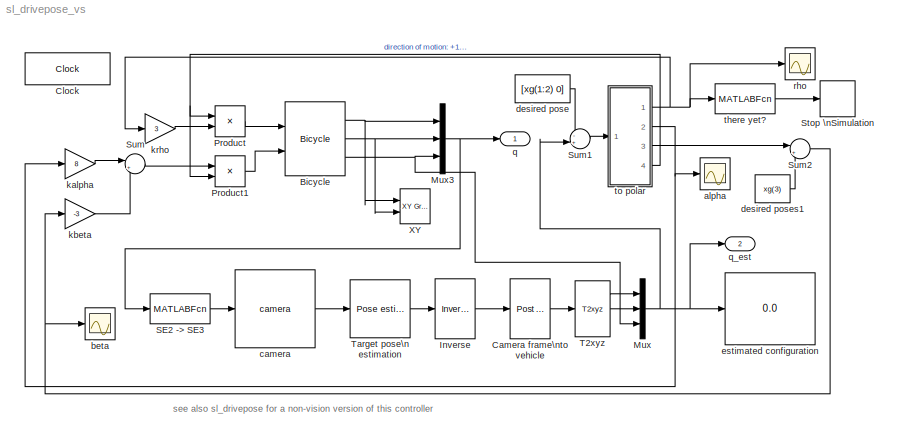
MODEL sl_drivepose_vs
KIND model
CONFIG InitFcn = camera = CentralCamera('default', 'focal', 0.002);\nP = [4 10 3; 9 9 2; 6 8 3; 8 10 4; 10 7 2]';\nT_VC = transl(0.2, 0.1, 0.5)*troty(pi/2)*trotz(-pi/2);\nx0 = [2 2 0];\nxg = [5 5 pi/2];
BLOCK [Reference] Bicycle  REF=roblocks/Dynamics/Bicycle  (lib defined in mdl_2a292b13c81b, mdl_69400f8cfe22, +12 more)
  L = 1
  Ports = [2, 3]
  SID = 41
  SourceBlock = roblocks/Dynamics/Bicycle
  accel = 1
  alim = 1
  handbrake = 0
  vlim = 1
  x0 = x0
BLOCK [Reference] Camera frame\nto vehicle  REF=roblocks/Transform/Post multiply  (lib defined in mdl_2a292b13c81b, mdl_69400f8cfe22, +12 more)
  Ports = [1, 1]
  SID = 126
  SourceBlock = roblocks/Transform/Post multiply
  T2 = inv(T_VC)
BLOCK [Clock] Clock
  DisplayTime = on
  SID = 127
BLOCK [Reference] Inverse  REF=roblocks/Transform/Inverse  (lib defined in mdl_2a292b13c81b, mdl_69400f8cfe22, +12 more)
  Ports = [1, 1]
  SID = 118
  SourceBlock = roblocks/Transform/Inverse
BLOCK [Mux] Mux
  DisplayOption = bar
  Inputs = 3
  Ports = [3, 1]
  SID = 121
BLOCK [Mux] Mux3
  DisplayOption = bar
  Inputs = 3
  Ports = [3, 1]
  SID = 18
BLOCK [Product] Product
  InputSameDT = off
  OutDataTypeStr = Inherit: Inherit via internal rule
  Ports = [2, 1]
  SID = 83
  SaturateOnIntegerOverflow = off
BLOCK [Product] Product1
  InputSameDT = off
  OutDataTypeStr = Inherit: Inherit via internal rule
  Ports = [2, 1]
  SID = 94
  SaturateOnIntegerOverflow = off
BLOCK [MATLABFcn] SE2 -> SE3
  MATLABFcn = se3(se2(u))*T_VC
  Output1D = off
  Ports = [1, 1]
  SID = 101
BLOCK [Stop] Stop \nSimulation
  SID = 95
BLOCK [Sum] Sum
  IconShape = round
  InputSameDT = off
  Inputs = |++
  OutDataTypeStr = Inherit: Inherit via internal rule
  Ports = [2, 1]
  SID = 20
  SaturateOnIntegerOverflow = off
BLOCK [Sum] Sum1
  IconShape = round
  InputSameDT = off
  Inputs = -+|
  OutDataTypeStr = Inherit: Inherit via internal rule
  Ports = [2, 1]
  SID = 92
  SaturateOnIntegerOverflow = off
BLOCK [Sum] Sum2
  IconShape = round
  InputSameDT = off
  Inputs = |++
  OutDataTypeStr = Inherit: Inherit via internal rule
  Ports = [2, 1]
  SID = 99
  SaturateOnIntegerOverflow = off
BLOCK [Reference] T2xyz  REF=roblocks/Transform Conversion/T2xyz  (lib defined in mdl_2a292b13c81b, mdl_69400f8cfe22, +12 more)
  Ports = [1, 3]
  SID = 120
  SourceBlock = roblocks/Transform Conversion/T2xyz
BLOCK [Reference] Target pose\n estimation  REF=roblocks/Vision/Pose estimation  (lib defined in mdl_2a292b13c81b, mdl_69400f8cfe22, +12 more)
  P = P
  Ports = [1, 1]
  SID = 117
  SourceBlock = roblocks/Vision/Pose estimation
  cam = camera
BLOCK [Reference] XY  REF=simulink/Sinks/XY Graph
  Ports = [2]
  SID = 22
  SourceBlock = simulink/Sinks/XY Graph
  SourceType = XY scope.
  st = -1
  xmax = 10
  xmin = -10
  ymax = 10
  ymin = -10
BLOCK [Scope] alpha
  DataFormat = StructureWithTime
  Floating = off
  NumInputPorts = 1
  Ports = [1]
  SID = 97
  SampleTime = 0
  ShowLegends = off
  TimeRange = 4
  YMax = 1
  YMin = -2
BLOCK [Scope] beta
  DataFormat = StructureWithTime
  Floating = off
  NumInputPorts = 1
  Ports = [1]
  SID = 98
  SampleTime = 0
  SaveName = ScopeData1
  ShowLegends = off
  TimeRange = 4
  YMax = 2.5
  YMin = -1
BLOCK [Reference] camera  REF=roblocks/Vision/camera  (lib defined in mdl_2a292b13c81b, mdl_69400f8cfe22, +12 more)
  Ports = [1, 1]
  SID = 102
  SourceBlock = roblocks/Vision/camera
  cam = camera
  points = P
BLOCK [Constant] desired pose
  SID = 93
  Value = [xg(1:2) 0]
BLOCK [Constant] desired poses1
  SID = 100
  Value = xg(3)
BLOCK [Display] estimated configuration
  Decimation = 1
  Ports = [1]
  SID = 122
BLOCK [Gain] kalpha
  Gain = 8
  OutDataTypeStr = Inherit: Inherit via internal rule
  ParamDataTypeStr = Inherit: Inherit via internal rule
  SID = 17
  SaturateOnIntegerOverflow = off
BLOCK [Gain] kbeta
  Gain = -3
  OutDataTypeStr = Inherit: Inherit via internal rule
  ParamDataTypeStr = Inherit: Inherit via internal rule
  SID = 60
  SaturateOnIntegerOverflow = off
BLOCK [Gain] krho
  Gain = 3
  OutDataTypeStr = Inherit: Inherit via internal rule
  ParamDataTypeStr = Inherit: Inherit via internal rule
  SID = 58
  SaturateOnIntegerOverflow = off
BLOCK [Outport] q
  IconDisplay = Port number
  SID = 37
BLOCK [Outport] q_est
  IconDisplay = Port number
  Port = 2
  SID = 112
BLOCK [Scope] rho
  DataFormat = StructureWithTime
  Floating = off
  NumInputPorts = 1
  Ports = [1]
  SID = 131
  SampleTime = 0
  SaveName = ScopeData2
  ShowLegends = off
  TimeRange = 4
  YMax = 3.25
  YMin = 1
BLOCK [MATLABFcn] there yet?
  MATLABFcn = double(abs(u)<0.08)
  OutputSignalType = real
  Ports = [1, 1]
  SID = 96
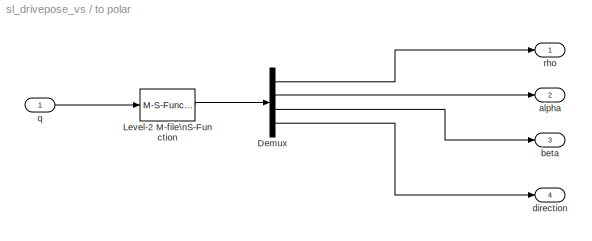
BLOCK [SubSystem] to polar
  Ports = [1, 4]
  RequestExecContextInheritance = off
  SID = 84
BLOCK [Demux] to polar/Demux
  DisplayOption = bar
  Ports = [1, 4]
  SID = 86
BLOCK [M-S-Function] to polar/Level-2 M-file\nS-Function
  FunctionName = polar_sfunc
  Ports = [1, 1]
  SID = 87
BLOCK [Outport] to polar/alpha
  IconDisplay = Port number
  Port = 2
  SID = 89
BLOCK [Outport] to polar/beta
  IconDisplay = Port number
  Port = 3
  SID = 90
BLOCK [Outport] to polar/direction
  IconDisplay = Port number
  Port = 4
  SID = 91
BLOCK [Inport] to polar/q
  IconDisplay = Port number
  SID = 85
BLOCK [Outport] to polar/rho
  IconDisplay = Port number
  SID = 88
ANNOTATION (root): see also sl_drivepose for a non-vision version of this controller
NET Bicycle:1 -> Mux3:1, XY:1
NET Bicycle:2 -> Mux3:2, XY:2
NET Bicycle:3 -> Mux3:3, Mux:3
LINE Camera frame\nto vehicle:1 -> T2xyz:1
LINE Inverse:1 -> Camera frame\nto vehicle:1
NET Mux3:1 -> SE2 -> SE3:1, q:1
NET Mux:1 -> Sum1:2, estimated configuration:1, q_est:1
LINE Product1:1 -> Bicycle:2
LINE Product:1 -> Bicycle:1
LINE SE2 -> SE3:1 -> camera:1
LINE Sum1:1 -> to polar:1
NET Sum2:1 -> beta:1, kbeta:1
LINE Sum:1 -> Product1:1
LINE T2xyz:1 -> Mux:1
LINE T2xyz:2 -> Mux:2
LINE Target pose\n estimation:1 -> Inverse:1
LINE camera:1 -> Target pose\n estimation:1
LINE desired pose:1 -> Sum1:1
LINE desired poses1:1 -> Sum2:2
LINE kalpha:1 -> Sum:1
LINE kbeta:1 -> Sum:2
LINE krho:1 -> Product:2
LINE there yet?:1 -> Stop \nSimulation:1
LINE to polar/Demux:1 -> to polar/rho:1
LINE to polar/Demux:2 -> to polar/alpha:1
LINE to polar/Demux:3 -> to polar/beta:1
LINE to polar/Demux:4 -> to polar/direction:1
LINE to polar/Level-2 M-file\nS-Function:1 -> to polar/Demux:1
LINE to polar/q:1 -> to polar/Level-2 M-file\nS-Function:1
NET to polar:1 -> krho:1, rho:1, there yet?:1
NET to polar:2 -> alpha:1, kalpha:1
LINE to polar:3 -> Sum2:1
NET to polar:4 -> Product1:2, Product:1
note: NET lines group one-source signal fan-out (src -> all destinations, sorted); 1:1 wires keep LINE
